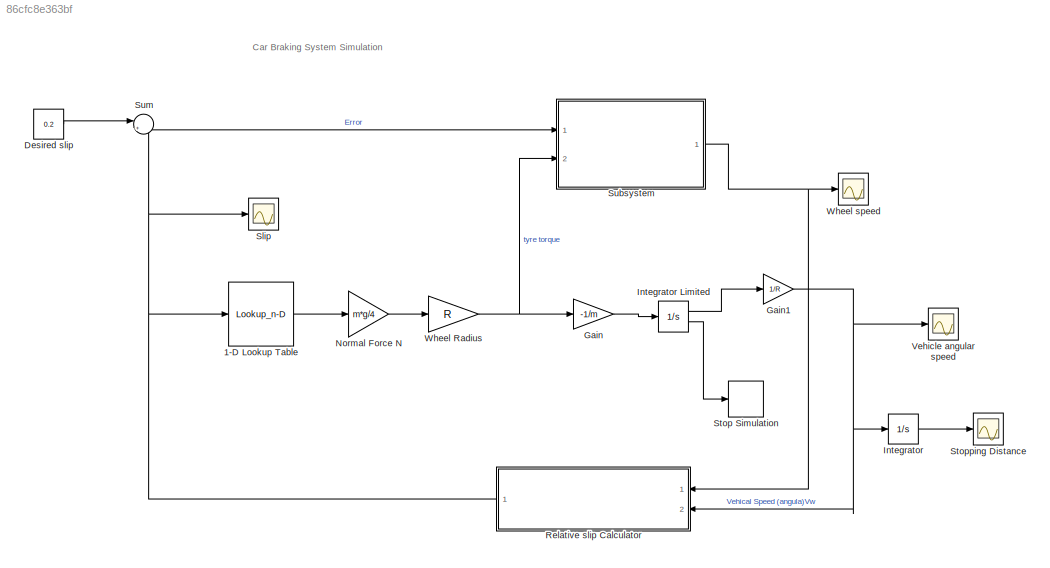
MODEL slx_86cfc8e363bf
KIND model
CONFIG AbsTol = auto
CONFIG EnableMultiTasking = off
CONFIG FixedStep = auto
CONFIG MaxStep = auto
CONFIG MinStep = auto
CONFIG RelTol = 1e-3
CONFIG SampleTimeConstraint = Unconstrained
CONFIG SolverName = VariableStepAuto
CONFIG StartTime = 0.0
CONFIG StopTime = 25
BLOCK [Lookup_n-D] 1-D Lookup Table
  BreakpointsForDimension1 = [0,0.05,0.1,0.15,0.2,0.25,0.3,0.35,0.4,0.45,0.5,0.55,0.6,0.65,0.7,0.75,0.8,0.85,0.9,0.95,1]
  InputPortMap = u0
  InternalRulePriority = Speed
  NumberOfTableDimensions = 1
  Ports = [1, 1]
  RndMeth = Zero
  Table = [0,0.4,0.8,0.97,1,0.98,0.96,0.94,0.92,0.9,0.88,0.855,0.83,0.81,0.79,0.77,0.75,0.73,0.72,0.71,0.7]
BLOCK [Constant] Desired slip
  Value = 0.2
BLOCK [Gain] Gain
  Gain = -1/m
BLOCK [Gain] Gain1
  Gain = 1/R
BLOCK [Integrator] Integrator
  Ports = [1, 1]
BLOCK [Integrator] Integrator Limited
  InitialCondition = v0
  LimitOutput = on
  LowerSaturationLimit = 0
  Ports = [1, 2]
  ShowSaturationPort = on
  UpperSaturationLimit = 1000
BLOCK [Gain] Normal Force N
  Gain = m*g/4
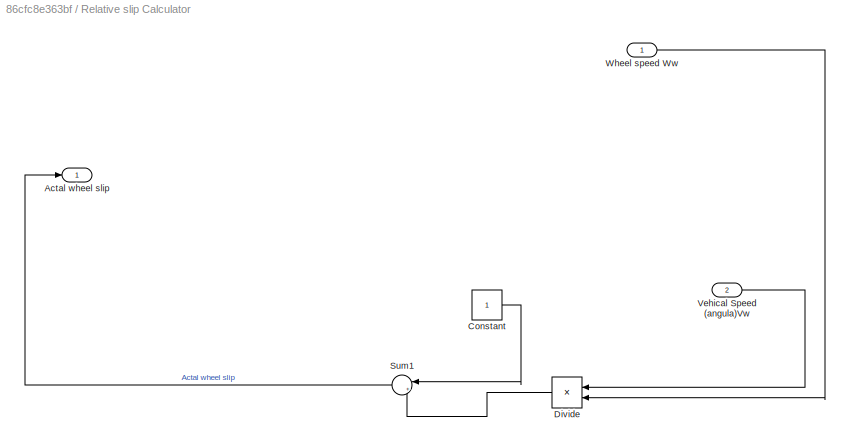
BLOCK [SubSystem] Relative slip Calculator 
  Ports = [2, 1]
  RequestExecContextInheritance = off
BLOCK [Outport] Relative slip Calculator /Actal wheel slip
BLOCK [Constant] Relative slip Calculator /Constant
BLOCK [Product] Relative slip Calculator /Divide
  Inputs = /*
  Ports = [2, 1]
BLOCK [Sum] Relative slip Calculator /Sum1
  Inputs = |+-
  NameLocation = top
  Ports = [2, 1]
BLOCK [Inport] Relative slip Calculator /Vehical Speed (angula)Vw
  Port = 2
BLOCK [Inport] Relative slip Calculator /Wheel speed Ww
BLOCK [Scope] Slip
  Floating = off
  NumInputPorts = 1
  Ports = [1]
  ScopeSpecificationString = Simulink.scopes.TimeScopeBlockCfg('CurrentConfiguration', extmgr.ConfigurationSet(extmgr.Configuration('Core','General UI',true),extmgr.Configuration('Core','Source UI',true),extmgr.Configuration('Sources','WiredSimulink',true,'DataLoggingVariableName','ScopeData3'),extmgr.Configuration('Visuals','Time Domain',true,'SerializedDisplays',{struct('MinYLimReal','-0.125','MaxYLimReal','1.125','YLabelRe...<+1400ch>
BLOCK [Stop] Stop Simulation
BLOCK [Scope] Stopping Distance
  Floating = off
  NumInputPorts = 1
  Ports = [1]
  ScopeSpecificationString = Simulink.scopes.TimeScopeBlockCfg('CurrentConfiguration', extmgr.ConfigurationSet(extmgr.Configuration('Core','General UI',true),extmgr.Configuration('Core','Source UI',true),extmgr.Configuration('Sources','WiredSimulink',true,'DataLoggingVariableName','ScopeData2'),extmgr.Configuration('Visuals','Time Domain',true,'SerializedDisplays',{struct('MinYLimReal','-37.95822','MaxYLimReal','341.62399','Y...<+1407ch>
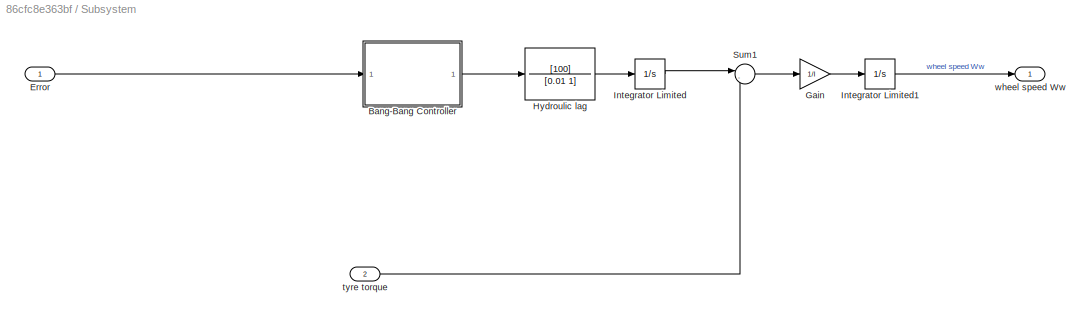
BLOCK [SubSystem] Subsystem
  Ports = [2, 1]
  RequestExecContextInheritance = off
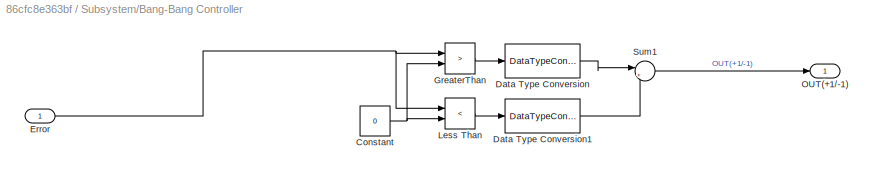
BLOCK [SubSystem] Subsystem/Bang-Bang Controller
  Ports = [1, 1]
  RequestExecContextInheritance = off
BLOCK [Constant] Subsystem/Bang-Bang Controller/Constant
  Value = 0
BLOCK [DataTypeConversion] Subsystem/Bang-Bang Controller/Data Type Conversion
  OutDataTypeStr = double
  SaturateOnIntegerOverflow = off
BLOCK [DataTypeConversion] Subsystem/Bang-Bang Controller/Data Type Conversion1
  OutDataTypeStr = double
  SaturateOnIntegerOverflow = off
BLOCK [Inport] Subsystem/Bang-Bang Controller/Error
BLOCK [RelationalOperator] Subsystem/Bang-Bang Controller/GreaterThan
  InputSameDT = off
  Operator = >
  OutDataTypeStr = boolean
  Ports = [2, 1]
  RndMeth = Simplest
BLOCK [RelationalOperator] Subsystem/Bang-Bang Controller/Less Than
  InputSameDT = off
  Operator = <
  OutDataTypeStr = boolean
  Ports = [2, 1]
  RndMeth = Simplest
BLOCK [Outport] Subsystem/Bang-Bang Controller/OUT(+1//-1)
BLOCK [Sum] Subsystem/Bang-Bang Controller/Sum1
  Inputs = |+-
  Ports = [2, 1]
BLOCK [Inport] Subsystem/Error
BLOCK [Gain] Subsystem/Gain
  Gain = 1/I
BLOCK [TransferFcn] Subsystem/Hydroulic lag
  Denominator = [0.01 1]
  Numerator = [100]
BLOCK [Integrator] Subsystem/Integrator Limited
  LimitOutput = on
  LowerSaturationLimit = 0
  Ports = [1, 1]
  UpperSaturationLimit = 1000
BLOCK [Integrator] Subsystem/Integrator Limited1
  InitialCondition = v0/R
  LimitOutput = on
  LowerSaturationLimit = 0
  Ports = [1, 1]
  UpperSaturationLimit = 1000
BLOCK [Sum] Subsystem/Sum1
  Inputs = |-+
  Ports = [2, 1]
BLOCK [Inport] Subsystem/tyre torque
  Port = 2
BLOCK [Outport] Subsystem/wheel speed Ww
BLOCK [Sum] Sum
  Inputs = |+-
  Ports = [2, 1]
BLOCK [Scope] Vehicle angular speed
  Floating = off
  NumInputPorts = 1
  Ports = [1]
  ScopeSpecificationString = Simulink.scopes.TimeScopeBlockCfg('CurrentConfiguration', extmgr.ConfigurationSet(extmgr.Configuration('Core','General UI',true),extmgr.Configuration('Core','Source UI',true),extmgr.Configuration('Sources','WiredSimulink',true,'DataLoggingVariableName','ScopeData1'),extmgr.Configuration('Visuals','Time Domain',true,'SerializedDisplays',{struct('MinYLimReal','-4.4','MaxYLimReal','39.6','YLabelReal'...<+1392ch>
BLOCK [Gain] Wheel Radius
  Gain = R
BLOCK [Scope] Wheel speed
  Floating = off
  NumInputPorts = 1
  Ports = [1]
  ScopeSpecificationString = Simulink.scopes.TimeScopeBlockCfg('CurrentConfiguration', extmgr.ConfigurationSet(extmgr.Configuration('Core','General UI',true),extmgr.Configuration('Core','Source UI',true),extmgr.Configuration('Sources','WiredSimulink',true),extmgr.Configuration('Visuals','Time Domain',true,'SerializedDisplays',{struct('MinYLimReal','-4.4','MaxYLimReal','39.6','YLabelReal','','MinYLimMag','0.00000','MaxYLimMag'...<+1338ch>
ANNOTATION (root): Car Braking System Simulation
LINE 1-D Lookup Table:1 -> Normal Force N:1
LINE Desired slip:1 -> Sum:1
NET Gain1:1 -> Integrator:1, Relative slip Calculator :2, Vehicle angular speed:1
LINE Gain:1 -> Integrator Limited:1
LINE Integrator Limited:1 -> Gain1:1
LINE Integrator Limited:2 -> Stop Simulation:1
LINE Integrator:1 -> Stopping Distance:1
LINE Normal Force N:1 -> Wheel Radius:1
LINE Relative slip Calculator /Constant:1 -> Relative slip Calculator /Sum1:1
LINE Relative slip Calculator /Divide:1 -> Relative slip Calculator /Sum1:2
LINE Relative slip Calculator /Sum1:1 -> Relative slip Calculator /Actal wheel slip:1
LINE Relative slip Calculator /Vehical Speed (angula)Vw:1 -> Relative slip Calculator /Divide:1
LINE Relative slip Calculator /Wheel speed Ww:1 -> Relative slip Calculator /Divide:2
NET Relative slip Calculator :1 -> 1-D Lookup Table:1, Slip:1, Sum:2
NET Subsystem/Bang-Bang Controller/Constant:1 -> Subsystem/Bang-Bang Controller/GreaterThan:2, Subsystem/Bang-Bang Controller/Less Than:2
LINE Subsystem/Bang-Bang Controller/Data Type Conversion1:1 -> Subsystem/Bang-Bang Controller/Sum1:2
LINE Subsystem/Bang-Bang Controller/Data Type Conversion:1 -> Subsystem/Bang-Bang Controller/Sum1:1
NET Subsystem/Bang-Bang Controller/Error:1 -> Subsystem/Bang-Bang Controller/GreaterThan:1, Subsystem/Bang-Bang Controller/Less Than:1
LINE Subsystem/Bang-Bang Controller/GreaterThan:1 -> Subsystem/Bang-Bang Controller/Data Type Conversion:1
LINE Subsystem/Bang-Bang Controller/Less Than:1 -> Subsystem/Bang-Bang Controller/Data Type Conversion1:1
LINE Subsystem/Bang-Bang Controller/Sum1:1 -> Subsystem/Bang-Bang Controller/OUT(+1//-1):1
LINE Subsystem/Bang-Bang Controller:1 -> Subsystem/Hydroulic lag:1
LINE Subsystem/Error:1 -> Subsystem/Bang-Bang Controller:1
LINE Subsystem/Gain:1 -> Subsystem/Integrator Limited1:1
LINE Subsystem/Hydroulic lag:1 -> Subsystem/Integrator Limited:1
LINE Subsystem/Integrator Limited1:1 -> Subsystem/wheel speed Ww:1
LINE Subsystem/Integrator Limited:1 -> Subsystem/Sum1:1
LINE Subsystem/Sum1:1 -> Subsystem/Gain:1
LINE Subsystem/tyre torque:1 -> Subsystem/Sum1:2
NET Subsystem:1 -> Relative slip Calculator :1, Wheel speed:1
LINE Sum:1 -> Subsystem:1
NET Wheel Radius:1 -> Gain:1, Subsystem:2
note: NET lines group one-source signal fan-out (src -> all destinations, sorted); 1:1 wires keep LINE
